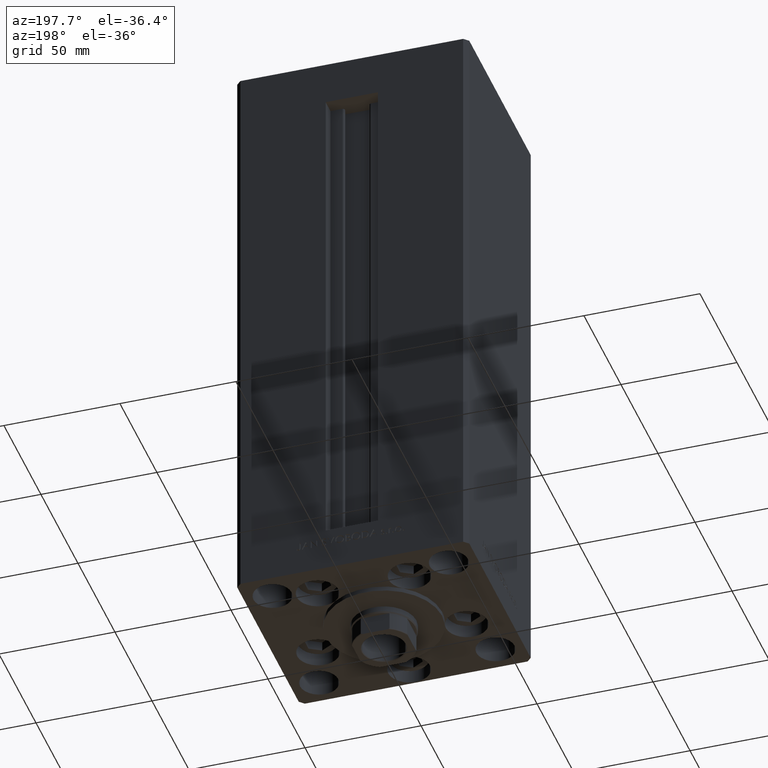
[diagram: clean part render]
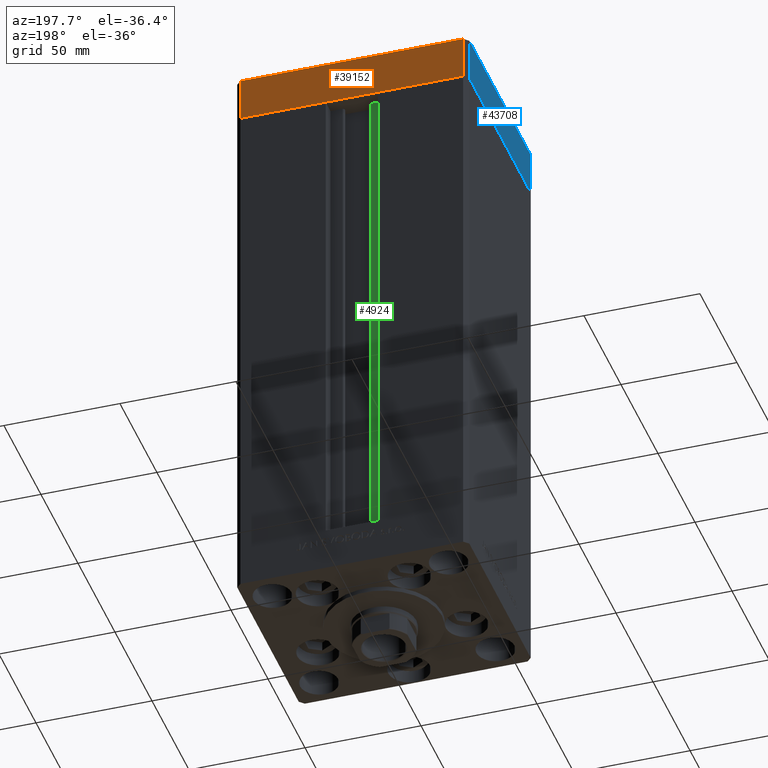
[diagram: same view with three faces highlighted in distinct colors, each labeled with its STEP entity id]
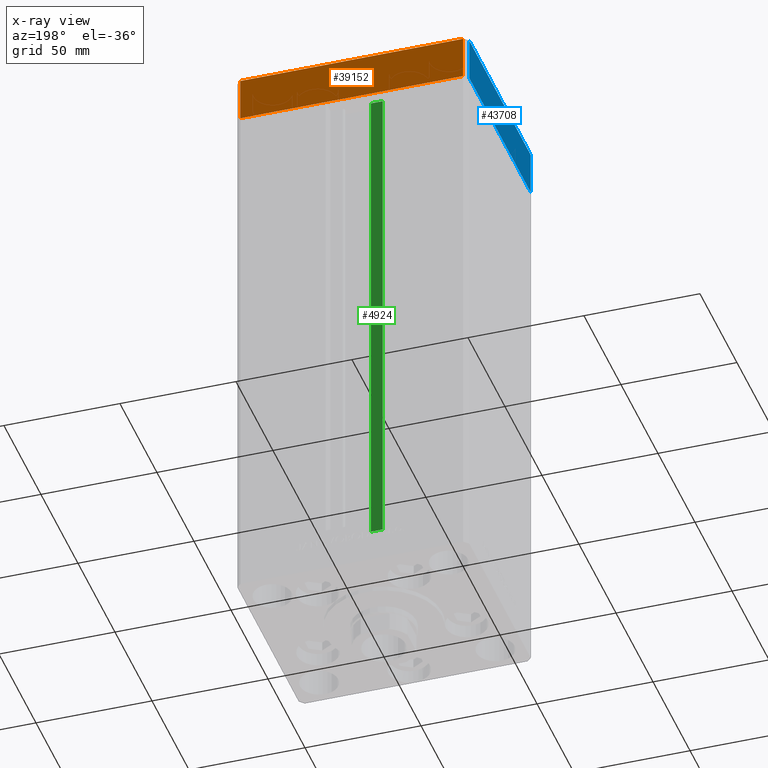
[diagram: x-ray of the same camera — body ghosted, the three highlighted faces saturated]
A machine part, auxiliary view with three faces highlighted in distinct colors.
The next image is the same camera in x-ray (body ghosted, the three faces saturated) — at least one of them is partly hidden behind the body in this view.
Their STEP definitions:

[orange] entity #39152 — the highlighted planar face has unit normal (-0, 1, 0).
#1277 = ORIENTED_EDGE ( 'NONE', *, *, #16952, .T. ) ;
#2246 = DIRECTION ( 'NONE',  ( -1.000000000000000000, -3.614007241618350743E-16, 0.000000000000000000 ) ) ;
#3424 = CARTESIAN_POINT ( 'NONE',  ( 47.99999999999990763, 43.50000000000000000, -19.00000000000000000 ) ) ;
#4696 = VERTEX_POINT ( 'NONE', #17081 ) ;
#5911 = DIRECTION ( 'NONE',  ( -1.000000000000000000, -3.614007241618350743E-16, 0.000000000000000000 ) ) ;
#6591 = EDGE_LOOP ( 'NONE', ( #8111, #44945, #22647, #1277 ) ) ;
#6939 = FACE_OUTER_BOUND ( 'NONE', #6591, .T. ) ;
#8111 = ORIENTED_EDGE ( 'NONE', *, *, #35782, .F. ) ;
#8941 = DIRECTION ( 'NONE',  ( 0.000000000000000000, 0.000000000000000000, 1.000000000000000000 ) ) ;
#9683 = VECTOR ( 'NONE', #2246, 1000.000000000000000 ) ;
#16242 = CARTESIAN_POINT ( 'NONE',  ( 47.99999999999990763, 43.50000000000000000, -19.00000000000000000 ) ) ;
#16952 = EDGE_CURVE ( 'NONE', #39320, #36447, #34651, .T. ) ;
#17076 = LINE ( 'NONE', #32358, #9683 ) ;
#17081 = CARTESIAN_POINT ( 'NONE',  ( 47.99999999999990763, 43.50000000000000000, -19.00000000000000000 ) ) ;
#17967 = CARTESIAN_POINT ( 'NONE',  ( 47.99999999999990763, 43.50000000000000000, -19.00000000000000000 ) ) ;
#19743 = CARTESIAN_POINT ( 'NONE',  ( -48.00000000000000711, 43.49999999999996447, 0.000000000000000000 ) ) ;
#19833 = VECTOR ( 'NONE', #5911, 1000.000000000000000 ) ;
#20238 = CARTESIAN_POINT ( 'NONE',  ( -48.00000000000000711, 43.49999999999996447, -19.00000000000000000 ) ) ;
#22362 = EDGE_CURVE ( 'NONE', #4696, #39320, #28502, .T. ) ;
#22647 = ORIENTED_EDGE ( 'NONE', *, *, #22362, .T. ) ;
#23240 = EDGE_CURVE ( 'NONE', #4696, #25351, #47272, .T. ) ;
#24084 = AXIS2_PLACEMENT_3D ( 'NONE', #3424, #33532, #45543 ) ;
#25351 = VERTEX_POINT ( 'NONE', #43259 ) ;
#28502 = LINE ( 'NONE', #17967, #19833 ) ;
#32358 = CARTESIAN_POINT ( 'NONE',  ( 47.99999999999990763, 43.50000000000000000, 0.000000000000000000 ) ) ;
#33228 = VECTOR ( 'NONE', #33641, 1000.000000000000000 ) ;
#33392 = VECTOR ( 'NONE', #8941, 1000.000000000000000 ) ;
#33532 = DIRECTION ( 'NONE',  ( -3.614007241618350743E-16, 1.000000000000000000, 0.000000000000000000 ) ) ;
#33641 = DIRECTION ( 'NONE',  ( 0.000000000000000000, 0.000000000000000000, 1.000000000000000000 ) ) ;
#34651 = LINE ( 'NONE', #41904, #33228 ) ;
#35782 = EDGE_CURVE ( 'NONE', #25351, #36447, #17076, .T. ) ;
#36447 = VERTEX_POINT ( 'NONE', #19743 ) ;
#39152 = ADVANCED_FACE ( 'NONE', ( #6939 ), #49302, .T. ) ;
#39320 = VERTEX_POINT ( 'NONE', #20238 ) ;
#41904 = CARTESIAN_POINT ( 'NONE',  ( -48.00000000000000711, 43.49999999999996447, -19.00000000000000000 ) ) ;
#43259 = CARTESIAN_POINT ( 'NONE',  ( 47.99999999999990763, 43.50000000000000000, 0.000000000000000000 ) ) ;
#44945 = ORIENTED_EDGE ( 'NONE', *, *, #23240, .F. ) ;
#45543 = DIRECTION ( 'NONE',  ( -1.000000000000000000, -3.614007241618350743E-16, 0.000000000000000000 ) ) ;
#47272 = LINE ( 'NONE', #16242, #33392 ) ;
#49302 = PLANE ( 'NONE',  #24084 ) ;

[blue] entity #43708 — the highlighted planar face has unit normal (-1, -0, 0).
#254 = VERTEX_POINT ( 'NONE', #42392 ) ;
#2586 = ORIENTED_EDGE ( 'NONE', *, *, #26208, .T. ) ;
#2772 = ORIENTED_EDGE ( 'NONE', *, *, #49176, .F. ) ;
#5662 = CARTESIAN_POINT ( 'NONE',  ( -50.00000000000000711, 41.49999999999995026, -19.00000000000000000 ) ) ;
#7780 = VERTEX_POINT ( 'NONE', #27702 ) ;
#8217 = AXIS2_PLACEMENT_3D ( 'NONE', #42150, #30636, #38143 ) ;
#8401 = LINE ( 'NONE', #11424, #48410 ) ;
#11018 = VECTOR ( 'NONE', #14068, 1000.000000000000000 ) ;
#11424 = CARTESIAN_POINT ( 'NONE',  ( -50.00000000000000711, 41.49999999999995026, 0.000000000000000000 ) ) ;
#13526 = VERTEX_POINT ( 'NONE', #37240 ) ;
#13713 = DIRECTION ( 'NONE',  ( 8.360113137237628665E-17, -1.000000000000000000, 0.000000000000000000 ) ) ;
#13984 = LINE ( 'NONE', #33270, #48907 ) ;
#14068 = DIRECTION ( 'NONE',  ( 0.000000000000000000, 0.000000000000000000, 1.000000000000000000 ) ) ;
#15381 = ORIENTED_EDGE ( 'NONE', *, *, #28761, .T. ) ;
#15694 = DIRECTION ( 'NONE',  ( 8.360113137237628665E-17, -1.000000000000000000, 0.000000000000000000 ) ) ;
#15851 = FACE_OUTER_BOUND ( 'NONE', #25983, .T. ) ;
#22484 = DIRECTION ( 'NONE',  ( 0.000000000000000000, 0.000000000000000000, 1.000000000000000000 ) ) ;
#25384 = VECTOR ( 'NONE', #13713, 1000.000000000000000 ) ;
#25983 = EDGE_LOOP ( 'NONE', ( #2772, #26336, #2586, #15381 ) ) ;
#26208 = EDGE_CURVE ( 'NONE', #254, #45073, #48265, .T. ) ;
#26336 = ORIENTED_EDGE ( 'NONE', *, *, #41318, .F. ) ;
#27702 = CARTESIAN_POINT ( 'NONE',  ( -50.00000000000000711, 41.49999999999995026, 0.000000000000000000 ) ) ;
#28761 = EDGE_CURVE ( 'NONE', #45073, #13526, #36859, .T. ) ;
#30636 = DIRECTION ( 'NONE',  ( -1.000000000000000000, -8.360113137237628665E-17, 0.000000000000000000 ) ) ;
#33270 = CARTESIAN_POINT ( 'NONE',  ( -50.00000000000000711, 41.49999999999995026, -19.00000000000000000 ) ) ;
#36859 = LINE ( 'NONE', #48370, #11018 ) ;
#37240 = CARTESIAN_POINT ( 'NONE',  ( -50.00000000000000000, -41.50000000000000000, 0.000000000000000000 ) ) ;
#37888 = PLANE ( 'NONE',  #8217 ) ;
#38143 = DIRECTION ( 'NONE',  ( 8.360113137237628665E-17, -1.000000000000000000, 0.000000000000000000 ) ) ;
#38238 = CARTESIAN_POINT ( 'NONE',  ( -50.00000000000000000, -41.50000000000000000, -19.00000000000000000 ) ) ;
#41318 = EDGE_CURVE ( 'NONE', #254, #7780, #13984, .T. ) ;
#42150 = CARTESIAN_POINT ( 'NONE',  ( -50.00000000000000711, 41.49999999999995026, -19.00000000000000000 ) ) ;
#42392 = CARTESIAN_POINT ( 'NONE',  ( -50.00000000000000711, 41.49999999999995026, -19.00000000000000000 ) ) ;
#43708 = ADVANCED_FACE ( 'NONE', ( #15851 ), #37888, .T. ) ;
#45073 = VERTEX_POINT ( 'NONE', #38238 ) ;
#48265 = LINE ( 'NONE', #5662, #25384 ) ;
#48370 = CARTESIAN_POINT ( 'NONE',  ( -50.00000000000000000, -41.50000000000000000, -19.00000000000000000 ) ) ;
#48410 = VECTOR ( 'NONE', #15694, 1000.000000000000000 ) ;
#48907 = VECTOR ( 'NONE', #22484, 1000.000000000000000 ) ;
#49176 = EDGE_CURVE ( 'NONE', #7780, #13526, #8401, .T. ) ;

[green] entity #4924 — the highlighted planar face has unit normal (0, -1, 0).
#330 = CARTESIAN_POINT ( 'NONE',  ( -6.183333333333997928, 36.99999999999999289, 0.000000000000000000 ) ) ;
#389 = EDGE_CURVE ( 'NONE', #36322, #36634, #10024, .T. ) ;
#3643 = VERTEX_POINT ( 'NONE', #32665 ) ;
#3784 = DIRECTION ( 'NONE',  ( -0.000000000000000000, -0.000000000000000000, 1.000000000000000000 ) ) ;
#4282 = CARTESIAN_POINT ( 'NONE',  ( -11.24999999999999822, 36.99999999999999289, 0.000000000000000000 ) ) ;
#4924 = ADVANCED_FACE ( 'NONE', ( #42839 ), #8509, .F. ) ;
#5170 = VERTEX_POINT ( 'NONE', #8663 ) ;
#8509 = PLANE ( 'NONE',  #24115 ) ;
#8524 = EDGE_CURVE ( 'NONE', #36634, #3643, #20289, .T. ) ;
#8663 = CARTESIAN_POINT ( 'NONE',  ( -11.24999999999999822, 36.99999999999999289, 0.000000000000000000 ) ) ;
#9024 = CARTESIAN_POINT ( 'NONE',  ( -6.183333333333997928, 36.99999999999999289, 218.5000000000000000 ) ) ;
#10024 = LINE ( 'NONE', #21572, #23978 ) ;
#11949 = CARTESIAN_POINT ( 'NONE',  ( -6.183333333333997928, 36.99999999999999289, 0.000000000000000000 ) ) ;
#12271 = CARTESIAN_POINT ( 'NONE',  ( 0.000000000000000000, 36.99999999999999289, 218.5000000000000000 ) ) ;
#12367 = ORIENTED_EDGE ( 'NONE', *, *, #27364, .F. ) ;
#14894 = EDGE_CURVE ( 'NONE', #5170, #3643, #27112, .T. ) ;
#16767 = DIRECTION ( 'NONE',  ( 0.000000000000000000, 0.000000000000000000, -1.000000000000000000 ) ) ;
#19416 = LINE ( 'NONE', #330, #48701 ) ;
#20289 = LINE ( 'NONE', #12271, #45018 ) ;
#20306 = CARTESIAN_POINT ( 'NONE',  ( -6.183333333333997928, 36.99999999999999289, 0.000000000000000000 ) ) ;
#21191 = VECTOR ( 'NONE', #3784, 1000.000000000000000 ) ;
#21572 = CARTESIAN_POINT ( 'NONE',  ( -6.183333333333997928, 36.99999999999999289, 0.000000000000000000 ) ) ;
#23978 = VECTOR ( 'NONE', #29326, 1000.000000000000000 ) ;
#24115 = AXIS2_PLACEMENT_3D ( 'NONE', #20306, #35565, #16767 ) ;
#25124 = ORIENTED_EDGE ( 'NONE', *, *, #8524, .F. ) ;
#25303 = ORIENTED_EDGE ( 'NONE', *, *, #389, .F. ) ;
#27112 = LINE ( 'NONE', #4282, #21191 ) ;
#27364 = EDGE_CURVE ( 'NONE', #5170, #36322, #19416, .T. ) ;
#29326 = DIRECTION ( 'NONE',  ( -0.000000000000000000, -0.000000000000000000, 1.000000000000000000 ) ) ;
#32294 = DIRECTION ( 'NONE',  ( -1.000000000000000000, 0.000000000000000000, 0.000000000000000000 ) ) ;
#32665 = CARTESIAN_POINT ( 'NONE',  ( -11.24999999999999822, 36.99999999999999289, 218.5000000000000000 ) ) ;
#35565 = DIRECTION ( 'NONE',  ( 0.000000000000000000, -1.000000000000000000, -0.000000000000000000 ) ) ;
#36322 = VERTEX_POINT ( 'NONE', #11949 ) ;
#36634 = VERTEX_POINT ( 'NONE', #9024 ) ;
#41608 = ORIENTED_EDGE ( 'NONE', *, *, #14894, .T. ) ;
#42839 = FACE_OUTER_BOUND ( 'NONE', #46258, .T. ) ;
#45018 = VECTOR ( 'NONE', #32294, 1000.000000000000000 ) ;
#45698 = DIRECTION ( 'NONE',  ( 1.000000000000000000, -0.000000000000000000, -0.000000000000000000 ) ) ;
#46258 = EDGE_LOOP ( 'NONE', ( #25303, #12367, #41608, #25124 ) ) ;
#48701 = VECTOR ( 'NONE', #45698, 1000.000000000000000 ) ;